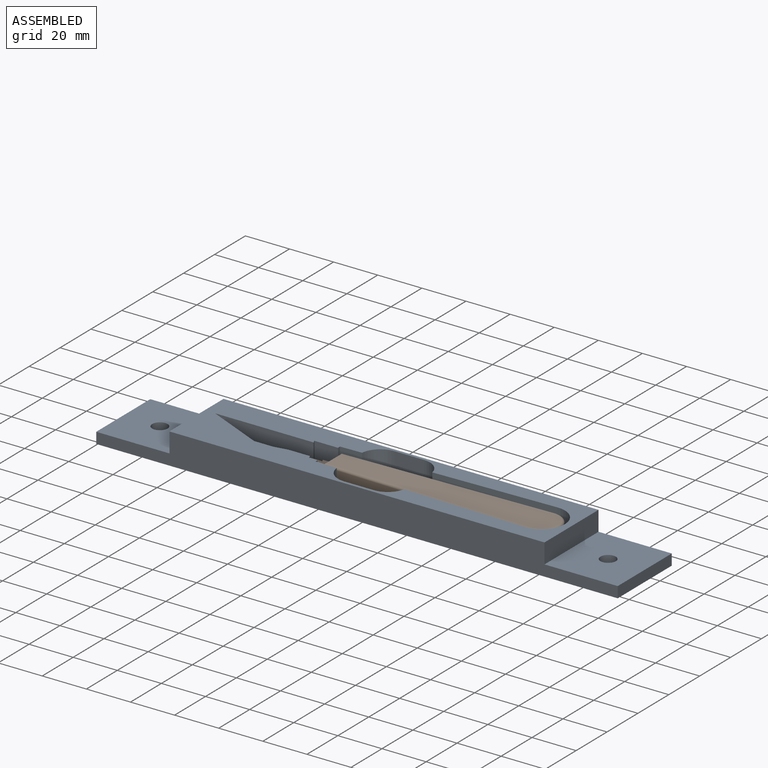
[diagram: assembled view]
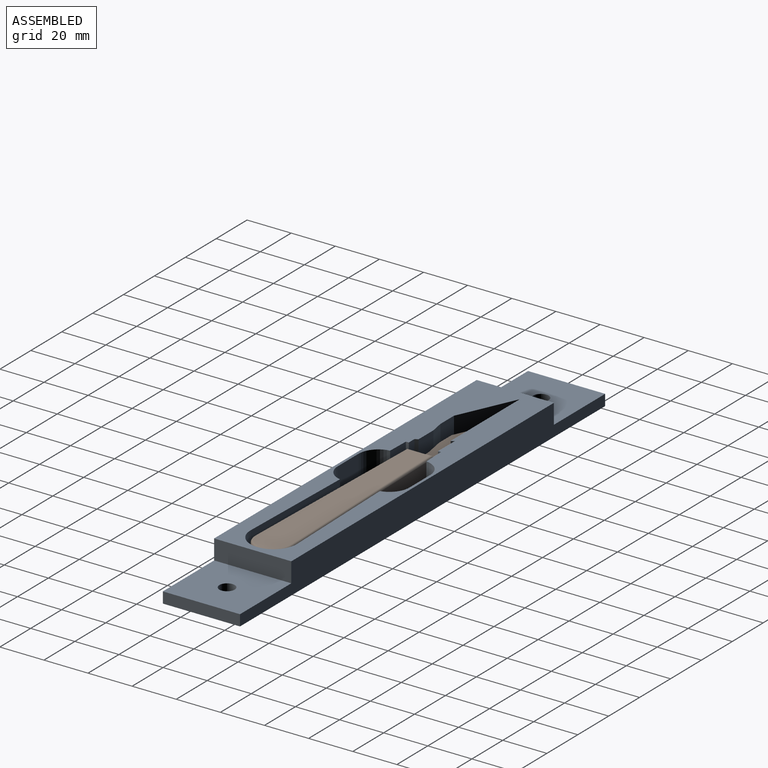
[diagram: assembled view, second angle]
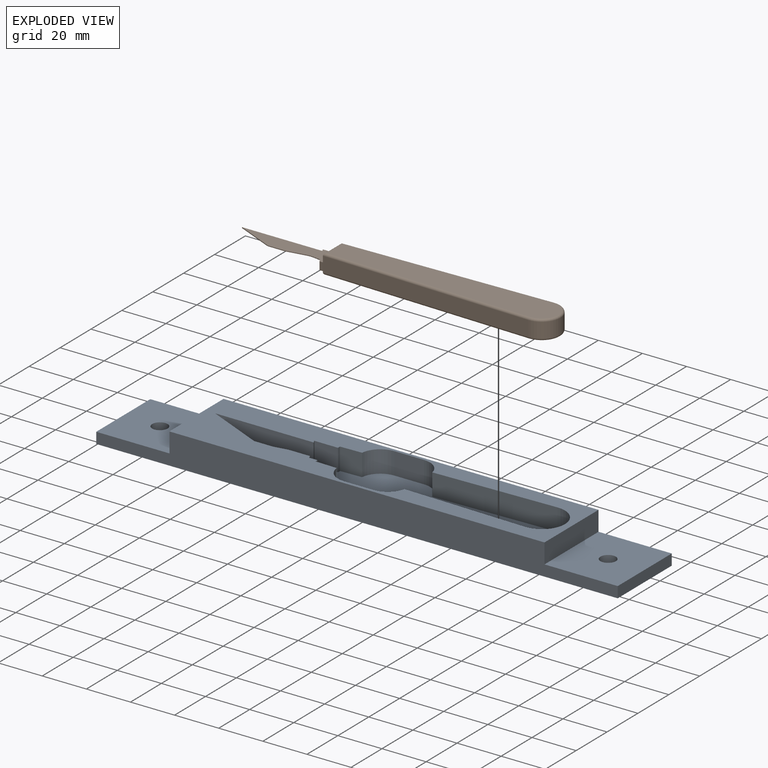
[diagram: exploded view]
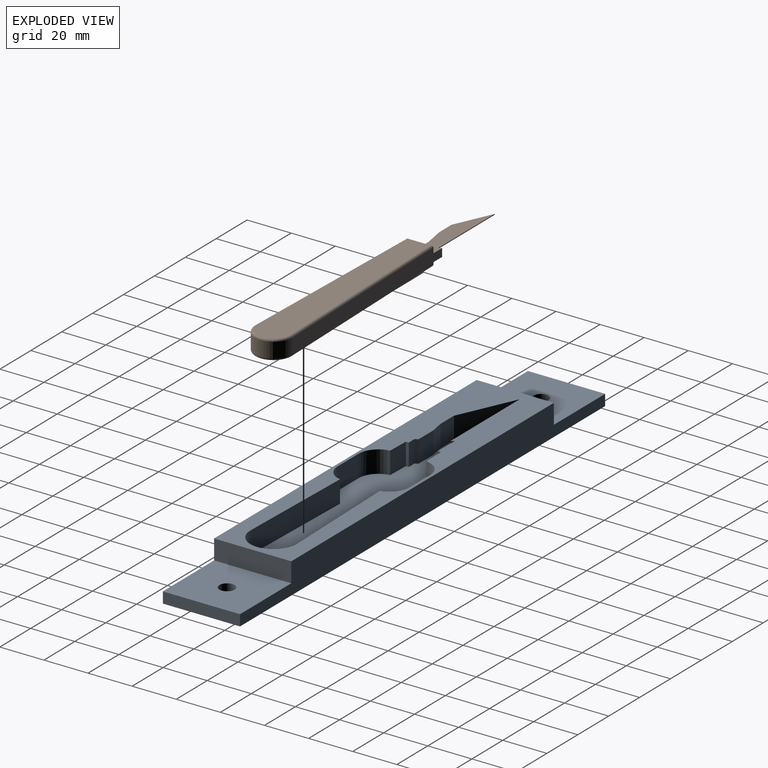
[diagram: exploded view, second angle]
ASSEMBLY  parts=2 mates=2
PART A: 36 faces, bbox 236.4x35x14 mm
  f0: plane 10x9.8mm, normal (0.03,1,0), area 98mm2, adj f2,f16,f29,f31
  f1: plane 10x9.8mm, normal (0.03,-1,0), area 98mm2, adj f2,f21,f29,f35
  f2: plane 170x35mm, normal (0,0,1), area 3084.9mm2, adj f0,f1,f6,f7,f10,f11,f14,f15
  f3: plane 236.4x35mm, normal (0,0,-1), area 8197mm2, adj f4,f9,f10,f11,f12,f13
  f4: plane 35x5mm, normal (1,0,0), area 175mm2, adj f3,f5,f10,f11
  f5: plane 35x33.2mm, normal (0,0,1), area 1123.5mm2, adj f4,f6,f10,f11,f13
  f6: plane 35x9mm, normal (1,0,0), area 315mm2, adj f2,f5,f10,f11
  f7: plane 35x9mm, normal (-1,0,0), area 315mm2, adj f2,f8,f10,f11
  f8: plane 35x33.2mm, normal (0,0,1), area 1123.5mm2, adj f7,f9,f10,f11,f12
  f9: plane 35x5mm, normal (-1,0,0), area 175mm2, adj f3,f8,f10,f11
  f10: plane 236.4x14mm, normal (0,-1,0), area 2712mm2, adj f2,f3,f4,f5,f6,f7,f8,f9
  f11: plane 236.4x14mm, normal (0,1,0), area 2712mm2, adj f2,f3,f4,f5,f6,f7,f8,f9
  f12: cylinder r=3.5mm len=7mm, axis (0,0,1), area 110mm2, adj f3,f8
  f13: cylinder r=3.5mm len=7mm, axis (0,0,1), area 110mm2, adj f3,f5
  f14: plane 10x1.35mm, normal (0.88,0.47,0), area 15.3mm2, adj f2,f15,f28,f29
  f15: plane 10x3.7mm, normal (0,1,0), area 37mm2, adj f2,f14,f16,f29
  f16: plane 10x1.3mm, normal (1,0,0), area 13mm2, adj f0,f2,f15,f29
  f17: plane 55.63x10mm, normal (0.03,1,0), area 556.5mm2, adj f2,f18,f29,f32
  f18: cylinder r=10.5mm len=10.8mm, axis (0,0,1), area 168mm2, adj f2,f17,f19,f29
  f19: cylinder r=10.5mm len=10.8mm, axis (0,0,1), area 167.9mm2, adj f2,f18,f20,f29
  f20: plane 55.63x10mm, normal (0.03,-1,0), area 556.5mm2, adj f2,f19,f29,f33
  f21: plane 10x1.3mm, normal (1,0,0), area 13mm2, adj f1,f2,f22,f29
  f22: plane 10.8x10mm, normal (0,-1,0), area 108mm2, adj f2,f21,f23,f29
  f23: plane 10x1.35mm, normal (0.88,0.47,0), area 15.3mm2, adj f2,f22,f24,f29
  f24: plane 44.72x10mm, normal (0,-1,0), area 447.2mm2, adj f2,f23,f25,f29
  f25: plane 25.88x11.69mm, normal (0.41,0.91,0), area 284mm2, adj f2,f24,f26,f29
  f26: plane 10x8.7mm, normal (0,1,0), area 87mm2, adj f2,f25,f27,f29
  f27: plane 10x6.16mm, normal (-0.17,0.98,0), area 62.6mm2, adj f2,f26,f28,f29
  f28: plane 10x9.63mm, normal (0,1,0), area 96.3mm2, adj f2,f14,f27,f29
  f29: plane 162.3x32.5mm, normal (0,0,1), area 2865.1mm2, adj f0,f1,f14,f15,f16,f17,f18,f19
  f30: plane 13.5x10mm, normal (0,1,0), area 135mm2, adj f2,f29,f31,f32
  f31: cylinder r=9mm len=10mm, axis (0,0,1), area 131.8mm2, adj f0,f2,f29,f30
  f32: cylinder r=9mm len=10mm, axis (0,0,1), area 123.4mm2, adj f2,f17,f29,f30
  f33: cylinder r=9mm len=10mm, axis (0,0,1), area 123.4mm2, adj f2,f20,f29,f34
  f34: plane 13.5x10mm, normal (0,-1,0), area 135mm2, adj f2,f29,f33,f35
  f35: cylinder r=9mm len=10mm, axis (0,0,1), area 131.8mm2, adj f1,f2,f29,f34
PART B: 25 faces, bbox 147.5x18.4x8.8 mm
  f0: plane 12x6.8mm, normal (-1,0,0), area 50mm2, adj f1,f3,f6,f7,f10,f17,f21
  f1: plane 94.78x6.8mm, normal (-0.03,-1,0), area 644.7mm2, adj f0,f2,f19,f23
  f2: cylinder r=8.5mm len=17mm, axis (0,0,-1), area 184.6mm2, adj f1,f3,f20,f24
  f3: plane 94.78x6.8mm, normal (-0.03,1,0), area 644.7mm2, adj f0,f2,f18,f22
  f4: plane 101.5x15mm, normal (0,0,1), area 1266mm2, adj f21,f22,f23,f24
  f5: plane 101.5x15mm, normal (0,0,-1), area 1266mm2, adj f17,f18,f19,f20
  f6: plane 3.62x2.52mm, normal (0,-1,0), area 9.1mm2, adj f0,f8,f9,f10,f17
  f7: plane 7.52x3.62mm, normal (0,1,0), area 27.2mm2, adj f0,f8,f9,f10,f17
  f8: plane 9.3x5mm, normal (-0.88,-0.47,0), area 35.6mm2, adj f6,f7,f9,f10,f11,f15,f16
  f9: plane 9.3x7.52mm, normal (0,0,-1), area 46.7mm2, adj f6,f7,f8,f17
  f10: plane 43.3x9.3mm, normal (0,0,1), area 260.2mm2, adj f0,f6,f7,f8,f11,f12,f13,f14
  f11: plane 36.45x0.35mm, normal (0,1,0), area 12.8mm2, adj f8,f10,f12,f16
  f12: plane 17x7.66mm, normal (-0.41,-0.91,0), area 6.5mm2, adj f10,f11,f13,f16
  f13: plane 8x0.35mm, normal (0,-1,0), area 2.8mm2, adj f10,f12,f14,f16
  f14: plane 6.01x1.06mm, normal (0.17,-0.98,0), area 2.1mm2, adj f10,f13,f15,f16
  f15: extruded ~8.99x0.6mm, area 3.2mm2, adj f8,f10,f14,f16
  f16: plane 40x7.66mm, normal (0,0,-1), area 213.7mm2, adj f8,f11,f12,f13,f14,f15
  f17: cylinder r=1mm len=12mm, axis (0,-1,0), area 15.7mm2, adj f0,f5,f6,f7,f9,f18,f19
  f18: cylinder r=1mm len=94.8mm, axis (-1,-0.03,0), area 148.4mm2, adj f3,f5,f17,f20
  f19: cylinder r=1mm len=94.8mm, axis (1,-0.03,0), area 148.4mm2, adj f1,f5,f17,f20
  f20: torus R=7.5mm, axis (0,0,1), area 40.8mm2, adj f2,f5,f18,f19
  f21: cylinder r=1mm len=12mm, axis (0,1,0), area 17.7mm2, adj f0,f4,f22,f23
  f22: cylinder r=1mm len=94.8mm, axis (1,0.03,0), area 148.4mm2, adj f3,f4,f21,f24
  f23: cylinder r=1mm len=94.8mm, axis (-1,0.03,0), area 148.4mm2, adj f1,f4,f21,f24
  f24: torus R=7.5mm, axis (0,0,1), area 40.8mm2, adj f2,f4,f22,f23
PLACE A t=(42.14,-70.36,10.29)mm
PLACE B t=(18.64,-70.36,18.69)mm
MATE cylindrical A.f19 <-> B.f2  axis (0,0,1) through (113.64,-70.36,19.29)mm
MATE planar B.f5 <-> A.f29  axis (0,0,-1) through (113.44,-77.86,14.29)mm
